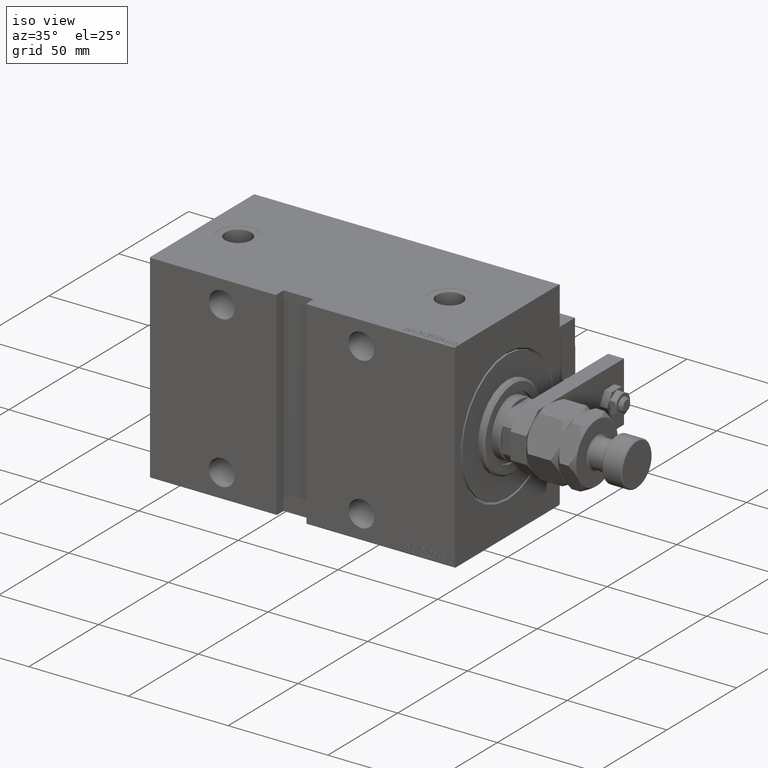
[diagram: clean part render]
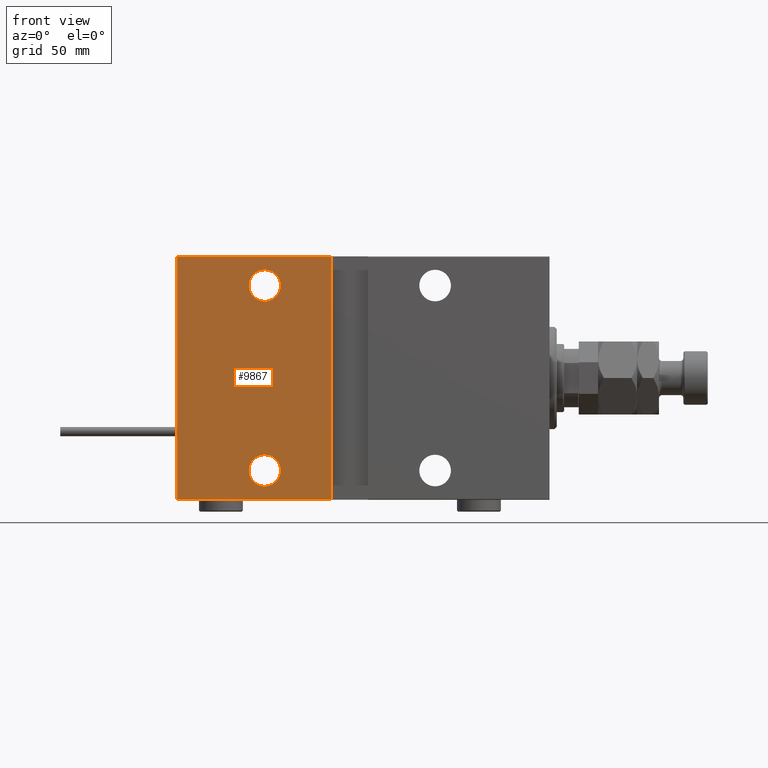
[diagram: tour spotlight — one face highlighted and labeled with its STEP entity id]
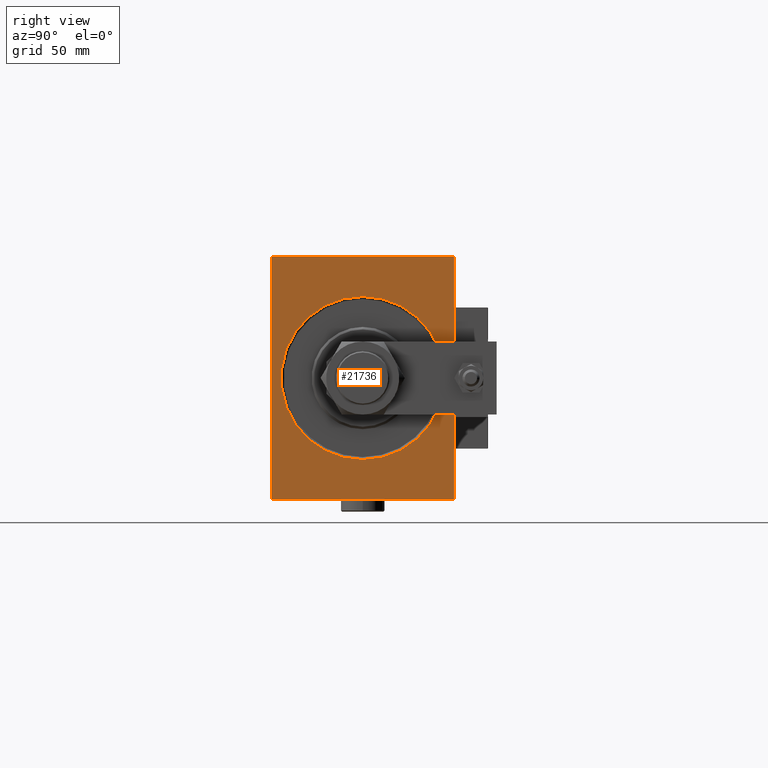
[diagram: tour spotlight — one face highlighted and labeled with its STEP entity id]
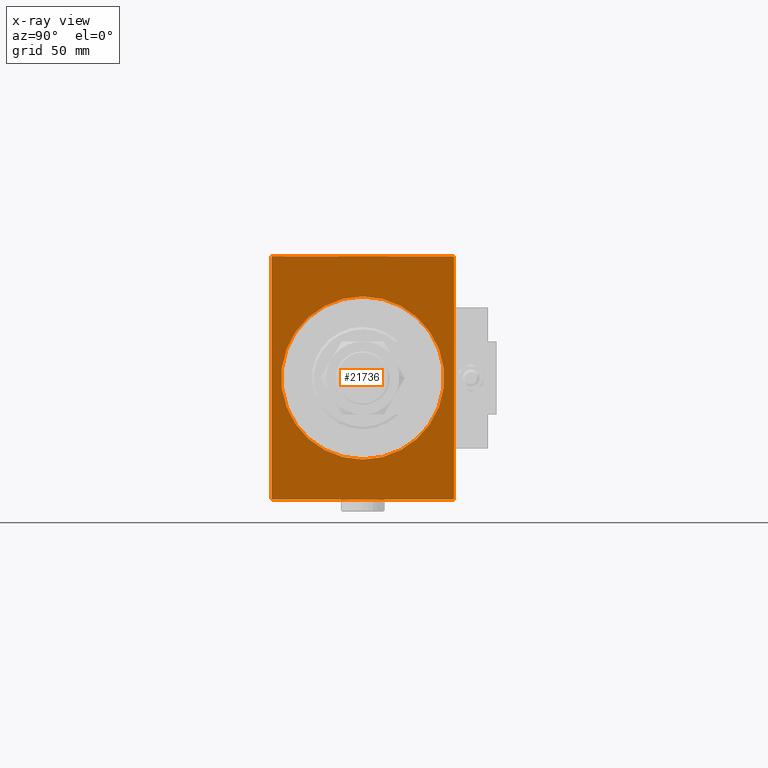
[diagram: x-ray of the same camera — body ghosted, this tour face saturated]
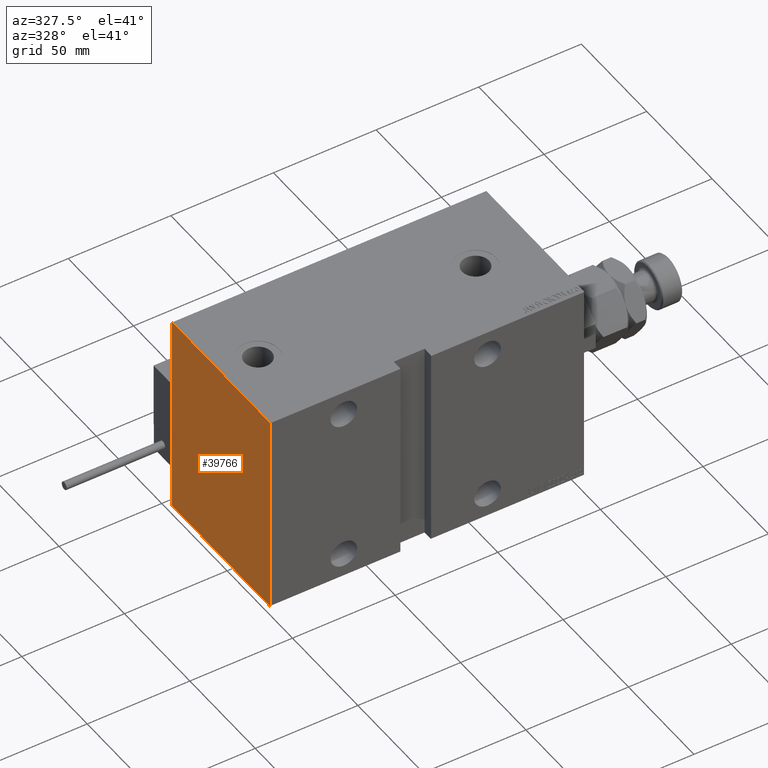
[diagram: tour spotlight — one face highlighted and labeled with its STEP entity id]
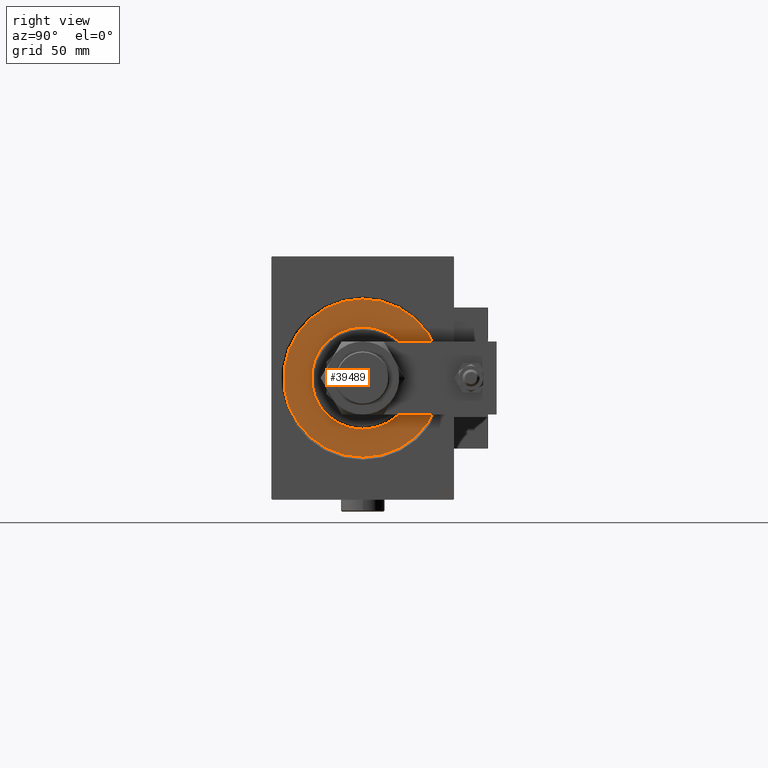
[diagram: tour spotlight — one face highlighted and labeled with its STEP entity id]
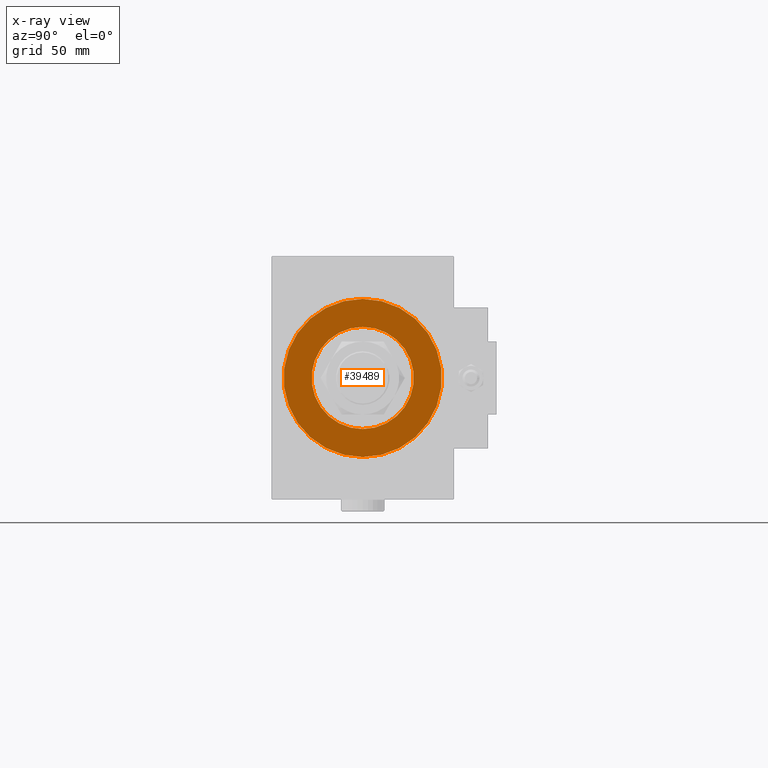
[diagram: x-ray of the same camera — body ghosted, this tour face saturated]
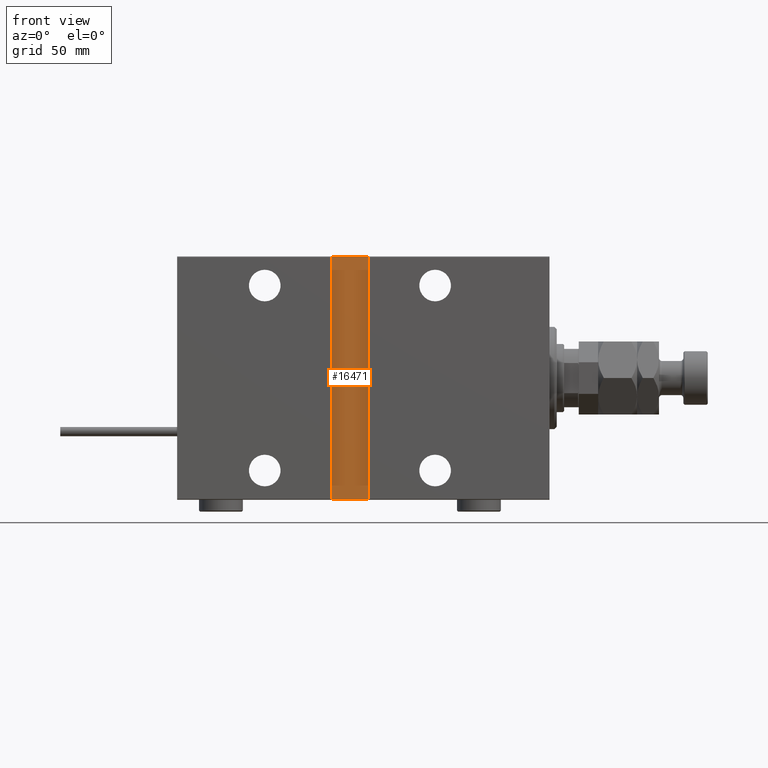
[diagram: tour spotlight — one face highlighted and labeled with its STEP entity id]
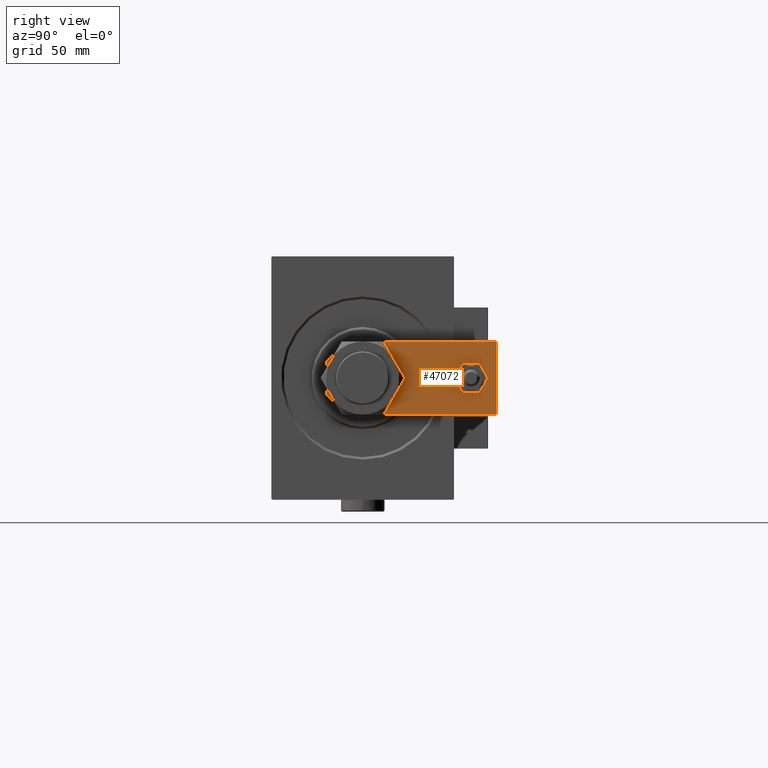
[diagram: tour spotlight — one face highlighted and labeled with its STEP entity id]
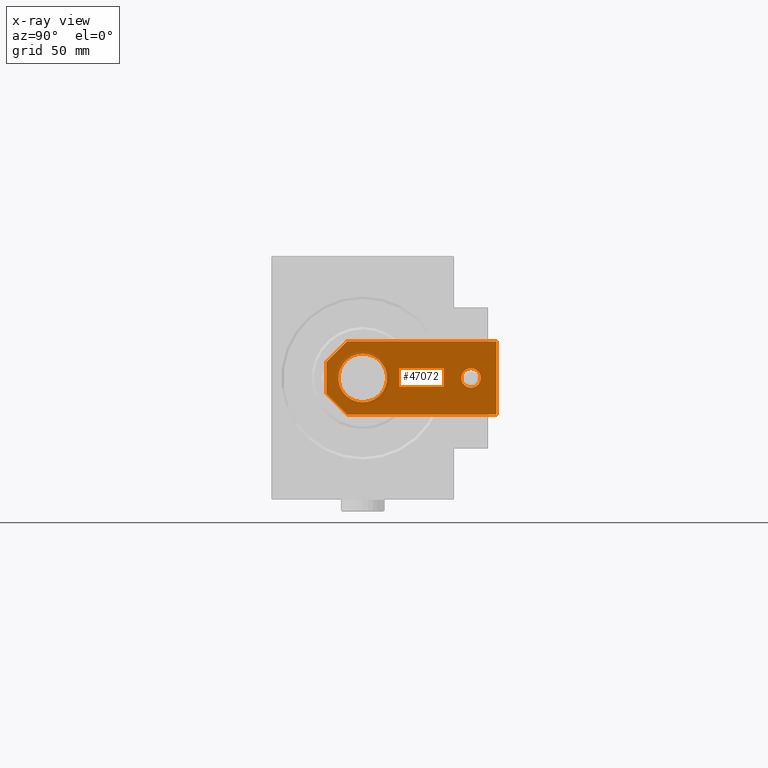
[diagram: x-ray of the same camera — body ghosted, this tour face saturated]
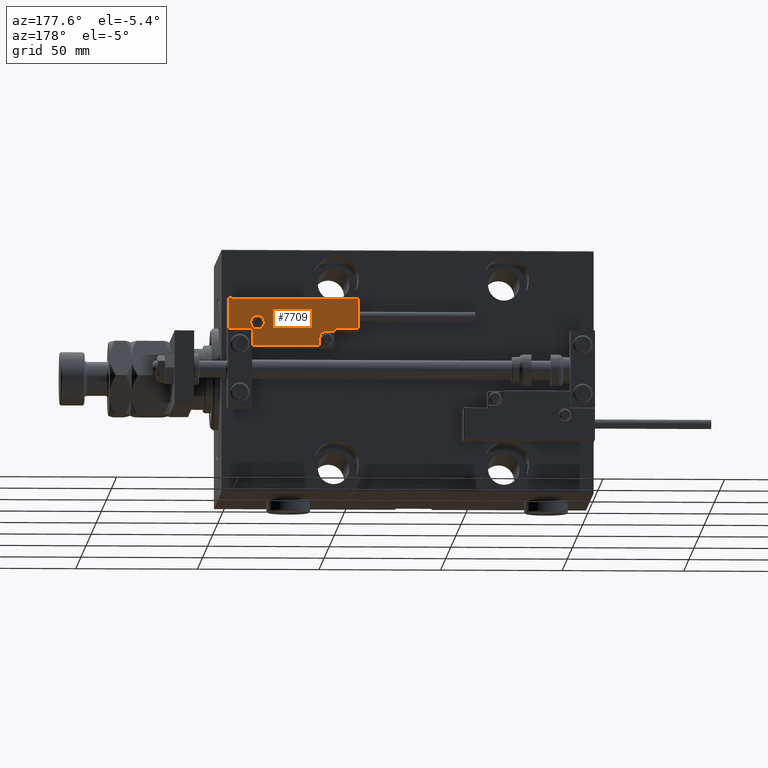
[diagram: tour spotlight — one face highlighted and labeled with its STEP entity id]
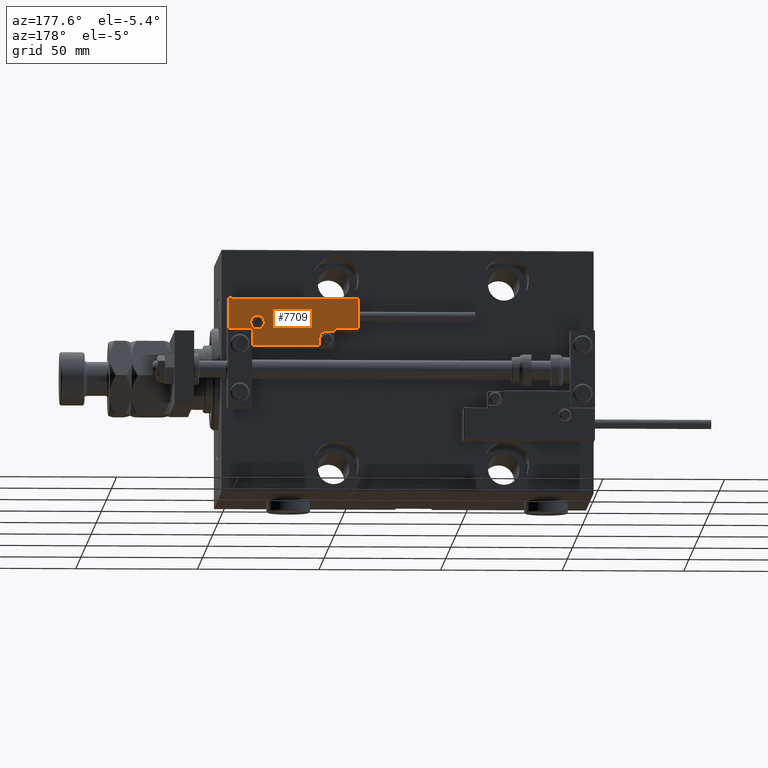
[diagram: tour spotlight — one face highlighted and labeled with its STEP entity id]
A machine part: a face-by-face anatomy tour. The part has 1401 B-rep faces; the first image is the clean iso view, then the 8 largest visible faces are spotlighted one at a time (largest first), each with its STEP entity span.

Face 1 — front view, entity #9867. In plain terms, the highlighted planar face has unit normal (-0, 1, -0).
Definition (entity closure, byte-faithful):
#248 = EDGE_CURVE ( 'NONE', #18387, #4590, #34618, .T. ) ;
#483 = EDGE_CURVE ( 'NONE', #19112, #26229, #46320, .T. ) ;
#2239 = CARTESIAN_POINT ( 'NONE',  ( 117.0000000000000000, 37.50000000000000711, -38.00000000000000000 ) ) ;
#2670 = DIRECTION ( 'NONE',  ( 1.000000000000000000, 0.000000000000000000, 0.000000000000000000 ) ) ;
#4590 = VERTEX_POINT ( 'NONE', #23427 ) ;
#4884 = CARTESIAN_POINT ( 'NONE',  ( 153.0000000000000000, 37.50000000000000711, -49.70000000000001705 ) ) ;
#4982 = EDGE_CURVE ( 'NONE', #33808, #26229, #15089, .T. ) ;
#6043 = DIRECTION ( 'NONE',  ( 0.000000000000000000, -1.000000000000000000, -1.387778780781445182E-16 ) ) ;
#7379 = AXIS2_PLACEMENT_3D ( 'NONE', #2239, #35174, #10537 ) ;
#7679 = DIRECTION ( 'NONE',  ( 0.000000000000000000, -1.000000000000000000, -1.387778780781445182E-16 ) ) ;
#7922 = VECTOR ( 'NONE', #2670, 1000.000000000000000 ) ;
#8030 = CARTESIAN_POINT ( 'NONE',  ( 153.0000000000000000, 37.50000000000000711, -50.00000000000000711 ) ) ;
#8160 = CIRCLE ( 'NONE', #11572, 6.499999999999999112 ) ;
#9603 = ORIENTED_EDGE ( 'NONE', *, *, #4982, .F. ) ;
#9867 = ADVANCED_FACE ( 'NONE', ( #21840, #51365, #29609 ), #30411, .F. ) ;
#10043 = ORIENTED_EDGE ( 'NONE', *, *, #248, .T. ) ;
#10537 = DIRECTION ( 'NONE',  ( 0.000000000000000000, 0.000000000000000000, -1.000000000000000000 ) ) ;
#11572 = AXIS2_PLACEMENT_3D ( 'NONE', #23478, #43604, #51673 ) ;
#12596 = EDGE_CURVE ( 'NONE', #19112, #45155, #41630, .T. ) ;
#12762 = ORIENTED_EDGE ( 'NONE', *, *, #29509, .T. ) ;
#13032 = ORIENTED_EDGE ( 'NONE', *, *, #483, .T. ) ;
#14264 = EDGE_LOOP ( 'NONE', ( #28526, #13032, #9603, #24773 ) ) ;
#14370 = CARTESIAN_POINT ( 'NONE',  ( 117.0000000000000000, 37.50000000000000711, -31.50000000000000000 ) ) ;
#14497 = CARTESIAN_POINT ( 'NONE',  ( 117.0000000000000142, 37.49999999999999289, 44.49999999999999289 ) ) ;
#15089 = LINE ( 'NONE', #31410, #47021 ) ;
#18387 = VERTEX_POINT ( 'NONE', #14370 ) ;
#19112 = VERTEX_POINT ( 'NONE', #4884 ) ;
#19277 = CARTESIAN_POINT ( 'NONE',  ( 153.0000000000000000, 37.49999999999999289, 49.70000000000000284 ) ) ;
#19327 = AXIS2_PLACEMENT_3D ( 'NONE', #20276, #7679, #33115 ) ;
#19560 = CARTESIAN_POINT ( 'NONE',  ( 117.0000000000000000, 37.50000000000000711, -38.00000000000000000 ) ) ;
#20276 = CARTESIAN_POINT ( 'NONE',  ( 117.0000000000000142, 37.49999999999999289, 37.99999999999999289 ) ) ;
#21840 = FACE_BOUND ( 'NONE', #24454, .T. ) ;
#22897 = CARTESIAN_POINT ( 'NONE',  ( 117.0000000000000142, 37.49999999999999289, 31.49999999999999289 ) ) ;
#23024 = LINE ( 'NONE', #19277, #7922 ) ;
#23389 = EDGE_CURVE ( 'NONE', #25434, #31495, #8160, .T. ) ;
#23427 = CARTESIAN_POINT ( 'NONE',  ( 117.0000000000000000, 37.50000000000000711, -44.50000000000000000 ) ) ;
#23478 = CARTESIAN_POINT ( 'NONE',  ( 117.0000000000000142, 37.49999999999999289, 37.99999999999999289 ) ) ;
#23625 = CIRCLE ( 'NONE', #7379, 6.499999999999999112 ) ;
#24454 = EDGE_LOOP ( 'NONE', ( #10043, #32001 ) ) ;
#24773 = ORIENTED_EDGE ( 'NONE', *, *, #45998, .T. ) ;
#24954 = CARTESIAN_POINT ( 'NONE',  ( 89.50000000000000000, 37.50000000000000711, -49.70000000000001705 ) ) ;
#25434 = VERTEX_POINT ( 'NONE', #14497 ) ;
#26229 = VERTEX_POINT ( 'NONE', #24954 ) ;
#28526 = ORIENTED_EDGE ( 'NONE', *, *, #12596, .F. ) ;
#29509 = EDGE_CURVE ( 'NONE', #31495, #25434, #38177, .T. ) ;
#29609 = FACE_OUTER_BOUND ( 'NONE', #14264, .T. ) ;
#30219 = DIRECTION ( 'NONE',  ( -1.000000000000000000, 0.000000000000000000, 0.000000000000000000 ) ) ;
#30411 = PLANE ( 'NONE',  #36157 ) ;
#31410 = CARTESIAN_POINT ( 'NONE',  ( 89.50000000000000000, 37.50000000000000711, -50.00000000000009237 ) ) ;
#31495 = VERTEX_POINT ( 'NONE', #22897 ) ;
#32001 = ORIENTED_EDGE ( 'NONE', *, *, #34592, .T. ) ;
#33115 = DIRECTION ( 'NONE',  ( 0.000000000000000000, 0.000000000000000000, -1.000000000000000000 ) ) ;
#33196 = DIRECTION ( 'NONE',  ( 0.000000000000000000, -1.387778780781445182E-16, 1.000000000000000000 ) ) ;
#33808 = VERTEX_POINT ( 'NONE', #52091 ) ;
#34592 = EDGE_CURVE ( 'NONE', #4590, #18387, #23625, .T. ) ;
#34618 = CIRCLE ( 'NONE', #37164, 6.499999999999999112 ) ;
#35174 = DIRECTION ( 'NONE',  ( 0.000000000000000000, -1.000000000000000000, -1.387778780781445182E-16 ) ) ;
#35883 = DIRECTION ( 'NONE',  ( 0.000000000000000000, -1.000000000000000000, -1.387778780781445182E-16 ) ) ;
#36157 = AXIS2_PLACEMENT_3D ( 'NONE', #42752, #6043, #46507 ) ;
#36673 = DIRECTION ( 'NONE',  ( 0.000000000000000000, 0.000000000000000000, -1.000000000000000000 ) ) ;
#37164 = AXIS2_PLACEMENT_3D ( 'NONE', #19560, #35883, #36673 ) ;
#38177 = CIRCLE ( 'NONE', #19327, 6.499999999999999112 ) ;
#38907 = VECTOR ( 'NONE', #30219, 1000.000000000000000 ) ;
#40081 = ORIENTED_EDGE ( 'NONE', *, *, #23389, .T. ) ;
#40610 = CARTESIAN_POINT ( 'NONE',  ( 153.0000000000000000, 37.49999999999999289, 49.70000000000000284 ) ) ;
#41630 = LINE ( 'NONE', #8030, #43159 ) ;
#42752 = CARTESIAN_POINT ( 'NONE',  ( 153.0000000000000000, 37.50000000000000711, -50.00000000000000711 ) ) ;
#43091 = EDGE_LOOP ( 'NONE', ( #40081, #12762 ) ) ;
#43159 = VECTOR ( 'NONE', #33196, 1000.000000000000000 ) ;
#43604 = DIRECTION ( 'NONE',  ( 0.000000000000000000, -1.000000000000000000, -1.387778780781445182E-16 ) ) ;
#45155 = VERTEX_POINT ( 'NONE', #40610 ) ;
#45998 = EDGE_CURVE ( 'NONE', #33808, #45155, #23024, .T. ) ;
#46320 = LINE ( 'NONE', #50626, #38907 ) ;
#46507 = DIRECTION ( 'NONE',  ( 0.000000000000000000, 1.387778780781445182E-16, -1.000000000000000000 ) ) ;
#47021 = VECTOR ( 'NONE', #48039, 1000.000000000000000 ) ;
#48039 = DIRECTION ( 'NONE',  ( 1.387778780781444196E-16, 1.387778780781444196E-16, -1.000000000000000000 ) ) ;
#50626 = CARTESIAN_POINT ( 'NONE',  ( 153.0000000000000000, 37.50000000000000711, -49.70000000000001705 ) ) ;
#51365 = FACE_BOUND ( 'NONE', #43091, .T. ) ;
#51673 = DIRECTION ( 'NONE',  ( 0.000000000000000000, 0.000000000000000000, -1.000000000000000000 ) ) ;
#52091 = CARTESIAN_POINT ( 'NONE',  ( 89.49999999999998579, 37.49999999999999289, 49.69999999999997442 ) ) ;

Face 2 — right view, entity #21736. An x-ray twin of the same camera follows (body ghosted, this face saturated) — the face is partly hidden behind the body. In plain terms, the highlighted planar face has unit normal (-1, 0, 0).
Definition (entity closure, byte-faithful):
#931 = AXIS2_PLACEMENT_3D ( 'NONE', #23116, #34643, #42962 ) ;
#1587 = VERTEX_POINT ( 'NONE', #43965 ) ;
#1717 = CARTESIAN_POINT ( 'NONE',  ( 0.000000000000000000, 37.20000000000004547, -50.00000000000000711 ) ) ;
#3975 = EDGE_LOOP ( 'NONE', ( #8108, #49578, #32792, #9693, #13779, #7066, #35428, #51733 ) ) ;
#3979 = CARTESIAN_POINT ( 'NONE',  ( 0.000000000000000000, 4.102566777143633774E-15, -33.50000000000000000 ) ) ;
#4292 = CARTESIAN_POINT ( 'NONE',  ( 0.000000000000000000, 37.19999999999996732, 50.00000000000001421 ) ) ;
#4353 = CARTESIAN_POINT ( 'NONE',  ( 0.000000000000000000, 37.50000000000000711, -49.70000000000001705 ) ) ;
#5083 = VECTOR ( 'NONE', #48864, 1000.000000000000000 ) ;
#7066 = ORIENTED_EDGE ( 'NONE', *, *, #38280, .T. ) ;
#7826 = CARTESIAN_POINT ( 'NONE',  ( 0.000000000000000000, 37.19999999999996732, 50.00000000000001421 ) ) ;
#8108 = ORIENTED_EDGE ( 'NONE', *, *, #20611, .F. ) ;
#8455 = VERTEX_POINT ( 'NONE', #1717 ) ;
#8925 = EDGE_CURVE ( 'NONE', #39301, #8455, #10485, .T. ) ;
#9105 = VERTEX_POINT ( 'NONE', #20628 ) ;
#9693 = ORIENTED_EDGE ( 'NONE', *, *, #14880, .T. ) ;
#9959 = EDGE_CURVE ( 'NONE', #18168, #33635, #50292, .T. ) ;
#10231 = VECTOR ( 'NONE', #41556, 999.9999999999998863 ) ;
#10485 = LINE ( 'NONE', #39153, #16264 ) ;
#10498 = CARTESIAN_POINT ( 'NONE',  ( 0.000000000000000000, -37.50000000000000000, 49.69999999999998153 ) ) ;
#13074 = VECTOR ( 'NONE', #42224, 1000.000000000000000 ) ;
#13560 = LINE ( 'NONE', #50829, #33068 ) ;
#13779 = ORIENTED_EDGE ( 'NONE', *, *, #8925, .F. ) ;
#14880 = EDGE_CURVE ( 'NONE', #18168, #8455, #40543, .T. ) ;
#14984 = EDGE_CURVE ( 'NONE', #31270, #15704, #43199, .T. ) ;
#15282 = CARTESIAN_POINT ( 'NONE',  ( 0.000000000000000000, 37.50000000000000711, -49.70000000000001705 ) ) ;
#15553 = DIRECTION ( 'NONE',  ( 0.000000000000000000, 1.000000000000000000, 9.251858538542970348E-17 ) ) ;
#15704 = VERTEX_POINT ( 'NONE', #49079 ) ;
#16264 = VECTOR ( 'NONE', #15553, 1000.000000000000000 ) ;
#16338 = CARTESIAN_POINT ( 'NONE',  ( 0.000000000000000000, 0.000000000000000000, 0.000000000000000000 ) ) ;
#17077 = CARTESIAN_POINT ( 'NONE',  ( 0.000000000000000000, 37.49999999999999289, 50.00000000000001421 ) ) ;
#18168 = VERTEX_POINT ( 'NONE', #15282 ) ;
#18175 = AXIS2_PLACEMENT_3D ( 'NONE', #16338, #20633, #19843 ) ;
#18199 = EDGE_CURVE ( 'NONE', #31270, #9105, #13560, .T. ) ;
#18354 = CARTESIAN_POINT ( 'NONE',  ( 0.000000000000000000, -37.20000000000003126, -50.00000000000001421 ) ) ;
#18794 = DIRECTION ( 'NONE',  ( -0.000000000000000000, 0.7071067811865556774, 0.7071067811865392461 ) ) ;
#19843 = DIRECTION ( 'NONE',  ( 0.000000000000000000, 0.000000000000000000, -1.000000000000000000 ) ) ;
#20214 = CARTESIAN_POINT ( 'NONE',  ( 0.000000000000000000, 37.49999999999999289, 49.70000000000000284 ) ) ;
#20340 = DIRECTION ( 'NONE',  ( 0.000000000000000000, 0.000000000000000000, -1.000000000000000000 ) ) ;
#20611 = EDGE_CURVE ( 'NONE', #25262, #15704, #40950, .T. ) ;
#20628 = CARTESIAN_POINT ( 'NONE',  ( 0.000000000000000000, -37.50000000000000000, -49.70000000000002416 ) ) ;
#20633 = DIRECTION ( 'NONE',  ( 1.000000000000000000, 0.000000000000000000, 0.000000000000000000 ) ) ;
#21736 = ADVANCED_FACE ( 'NONE', ( #45541, #32673 ), #45027, .F. ) ;
#22520 = AXIS2_PLACEMENT_3D ( 'NONE', #32939, #34744, #36158 ) ;
#23116 = CARTESIAN_POINT ( 'NONE',  ( 0.000000000000000000, 0.000000000000000000, 0.000000000000000000 ) ) ;
#23948 = EDGE_CURVE ( 'NONE', #25262, #33635, #35724, .T. ) ;
#25262 = VERTEX_POINT ( 'NONE', #7826 ) ;
#25665 = ORIENTED_EDGE ( 'NONE', *, *, #41448, .T. ) ;
#25742 = CIRCLE ( 'NONE', #931, 33.50000000000000000 ) ;
#25978 = CARTESIAN_POINT ( 'NONE',  ( 0.000000000000000000, -37.20000000000003126, -50.00000000000001421 ) ) ;
#29552 = ORIENTED_EDGE ( 'NONE', *, *, #45066, .T. ) ;
#31270 = VERTEX_POINT ( 'NONE', #45753 ) ;
#32673 = FACE_OUTER_BOUND ( 'NONE', #3975, .T. ) ;
#32792 = ORIENTED_EDGE ( 'NONE', *, *, #9959, .F. ) ;
#32939 = CARTESIAN_POINT ( 'NONE',  ( 0.000000000000000000, 0.000000000000000000, 0.000000000000000000 ) ) ;
#33068 = VECTOR ( 'NONE', #20340, 1000.000000000000000 ) ;
#33635 = VERTEX_POINT ( 'NONE', #20214 ) ;
#34643 = DIRECTION ( 'NONE',  ( 1.000000000000000000, 0.000000000000000000, 0.000000000000000000 ) ) ;
#34706 = VECTOR ( 'NONE', #44057, 1000.000000000000114 ) ;
#34744 = DIRECTION ( 'NONE',  ( 1.000000000000000000, 0.000000000000000000, 0.000000000000000000 ) ) ;
#35428 = ORIENTED_EDGE ( 'NONE', *, *, #18199, .F. ) ;
#35724 = LINE ( 'NONE', #4292, #34706 ) ;
#36158 = DIRECTION ( 'NONE',  ( 0.000000000000000000, 0.000000000000000000, -1.000000000000000000 ) ) ;
#38280 = EDGE_CURVE ( 'NONE', #39301, #9105, #49881, .T. ) ;
#38740 = VECTOR ( 'NONE', #49806, 1000.000000000000000 ) ;
#39153 = CARTESIAN_POINT ( 'NONE',  ( 0.000000000000000000, -37.50000000000000000, -50.00000000000001421 ) ) ;
#39301 = VERTEX_POINT ( 'NONE', #18354 ) ;
#39593 = VERTEX_POINT ( 'NONE', #3979 ) ;
#40543 = LINE ( 'NONE', #4353, #5083 ) ;
#40950 = LINE ( 'NONE', #17077, #38740 ) ;
#41448 = EDGE_CURVE ( 'NONE', #39593, #1587, #25742, .T. ) ;
#41556 = DIRECTION ( 'NONE',  ( -0.000000000000000000, -0.7071067811865149322, 0.7071067811865802133 ) ) ;
#42127 = CIRCLE ( 'NONE', #18175, 33.50000000000000000 ) ;
#42224 = DIRECTION ( 'NONE',  ( 0.000000000000000000, -1.387778780781445182E-16, 1.000000000000000000 ) ) ;
#42962 = DIRECTION ( 'NONE',  ( 0.000000000000000000, 0.000000000000000000, -1.000000000000000000 ) ) ;
#43199 = LINE ( 'NONE', #10498, #50492 ) ;
#43965 = CARTESIAN_POINT ( 'NONE',  ( 0.000000000000000000, 0.000000000000000000, 33.50000000000000000 ) ) ;
#44057 = DIRECTION ( 'NONE',  ( -0.000000000000000000, 0.7071067811865556774, -0.7071067811865393571 ) ) ;
#45027 = PLANE ( 'NONE',  #22520 ) ;
#45066 = EDGE_CURVE ( 'NONE', #1587, #39593, #42127, .T. ) ;
#45541 = FACE_BOUND ( 'NONE', #50531, .T. ) ;
#45753 = CARTESIAN_POINT ( 'NONE',  ( 0.000000000000000000, -37.50000000000000000, 49.69999999999998153 ) ) ;
#46241 = CARTESIAN_POINT ( 'NONE',  ( 0.000000000000000000, 37.50000000000000711, -50.00000000000000711 ) ) ;
#48864 = DIRECTION ( 'NONE',  ( 0.000000000000000000, -0.7071067811865066055, -0.7071067811865884289 ) ) ;
#49079 = CARTESIAN_POINT ( 'NONE',  ( 0.000000000000000000, -37.19999999999996732, 50.00000000000000000 ) ) ;
#49578 = ORIENTED_EDGE ( 'NONE', *, *, #23948, .T. ) ;
#49806 = DIRECTION ( 'NONE',  ( 0.000000000000000000, -1.000000000000000000, -1.850371707708594563E-16 ) ) ;
#49881 = LINE ( 'NONE', #25978, #10231 ) ;
#50292 = LINE ( 'NONE', #46241, #13074 ) ;
#50492 = VECTOR ( 'NONE', #18794, 1000.000000000000114 ) ;
#50531 = EDGE_LOOP ( 'NONE', ( #29552, #25665 ) ) ;
#50829 = CARTESIAN_POINT ( 'NONE',  ( 0.000000000000000000, -37.50000000000000000, 50.00000000000000000 ) ) ;
#51733 = ORIENTED_EDGE ( 'NONE', *, *, #14984, .T. ) ;

Face 3 — auxiliary view, entity #39766. In plain terms, the highlighted planar face has unit normal (-1, 0, 0).
Definition (entity closure, byte-faithful):
#482 = DIRECTION ( 'NONE',  ( 0.000000000000000000, 0.000000000000000000, -1.000000000000000000 ) ) ;
#1167 = CARTESIAN_POINT ( 'NONE',  ( 153.0000000000000000, 37.49999999999999289, 50.00000000000001421 ) ) ;
#1484 = DIRECTION ( 'NONE',  ( 0.000000000000000000, -0.7071067811865556774, -0.7071067811865392461 ) ) ;
#2269 = CARTESIAN_POINT ( 'NONE',  ( 153.0000000000000000, 37.20000000000004547, -50.00000000000000711 ) ) ;
#4192 = ORIENTED_EDGE ( 'NONE', *, *, #4401, .T. ) ;
#4401 = EDGE_CURVE ( 'NONE', #32647, #8395, #37648, .T. ) ;
#4884 = CARTESIAN_POINT ( 'NONE',  ( 153.0000000000000000, 37.50000000000000711, -49.70000000000001705 ) ) ;
#6655 = VECTOR ( 'NONE', #36713, 999.9999999999998863 ) ;
#8030 = CARTESIAN_POINT ( 'NONE',  ( 153.0000000000000000, 37.50000000000000711, -50.00000000000000711 ) ) ;
#8331 = CARTESIAN_POINT ( 'NONE',  ( 153.0000000000000000, -43.60000000000174225, -43.59999999999771347 ) ) ;
#8395 = VERTEX_POINT ( 'NONE', #37887 ) ;
#12348 = CARTESIAN_POINT ( 'NONE',  ( 153.0000000000000000, 43.60000000000217568, -43.59999999999713083 ) ) ;
#12596 = EDGE_CURVE ( 'NONE', #19112, #45155, #41630, .T. ) ;
#12607 = CARTESIAN_POINT ( 'NONE',  ( 153.0000000000000000, -37.50000000000000000, -49.70000000000002416 ) ) ;
#13142 = DIRECTION ( 'NONE',  ( -0.000000000000000000, 0.7071067811865066055, 0.7071067811865884289 ) ) ;
#14553 = VERTEX_POINT ( 'NONE', #2269 ) ;
#14644 = VECTOR ( 'NONE', #50871, 1000.000000000000000 ) ;
#16089 = LINE ( 'NONE', #8331, #6655 ) ;
#16202 = EDGE_CURVE ( 'NONE', #8395, #19487, #39311, .T. ) ;
#16257 = AXIS2_PLACEMENT_3D ( 'NONE', #50349, #25388, #482 ) ;
#16534 = ORIENTED_EDGE ( 'NONE', *, *, #24961, .T. ) ;
#16939 = EDGE_CURVE ( 'NONE', #26187, #14553, #26317, .T. ) ;
#18809 = CARTESIAN_POINT ( 'NONE',  ( 153.0000000000000000, -37.19999999999996732, 50.00000000000000000 ) ) ;
#18842 = CARTESIAN_POINT ( 'NONE',  ( 153.0000000000000000, -37.20000000000003126, -50.00000000000001421 ) ) ;
#19112 = VERTEX_POINT ( 'NONE', #4884 ) ;
#19285 = DIRECTION ( 'NONE',  ( 0.000000000000000000, 1.000000000000000000, 9.251858538542970348E-17 ) ) ;
#19487 = VERTEX_POINT ( 'NONE', #12607 ) ;
#20022 = ORIENTED_EDGE ( 'NONE', *, *, #27603, .T. ) ;
#20211 = EDGE_CURVE ( 'NONE', #14553, #19112, #32693, .T. ) ;
#20445 = VECTOR ( 'NONE', #1484, 1000.000000000000114 ) ;
#21616 = ORIENTED_EDGE ( 'NONE', *, *, #16939, .T. ) ;
#22629 = DIRECTION ( 'NONE',  ( -0.000000000000000000, -0.7071067811865556774, 0.7071067811865393571 ) ) ;
#24567 = VECTOR ( 'NONE', #22629, 1000.000000000000114 ) ;
#24603 = ORIENTED_EDGE ( 'NONE', *, *, #12596, .T. ) ;
#24961 = EDGE_CURVE ( 'NONE', #37210, #32647, #45933, .T. ) ;
#25388 = DIRECTION ( 'NONE',  ( 1.000000000000000000, 0.000000000000000000, 0.000000000000000000 ) ) ;
#26187 = VERTEX_POINT ( 'NONE', #18842 ) ;
#26317 = LINE ( 'NONE', #34355, #32582 ) ;
#26906 = CARTESIAN_POINT ( 'NONE',  ( 153.0000000000000000, 43.59999999999956088, 43.60000000000056986 ) ) ;
#27391 = ORIENTED_EDGE ( 'NONE', *, *, #16202, .T. ) ;
#27603 = EDGE_CURVE ( 'NONE', #45155, #37210, #39243, .T. ) ;
#27860 = VECTOR ( 'NONE', #13142, 1000.000000000000000 ) ;
#28048 = EDGE_CURVE ( 'NONE', #19487, #26187, #16089, .T. ) ;
#30108 = ORIENTED_EDGE ( 'NONE', *, *, #28048, .T. ) ;
#32582 = VECTOR ( 'NONE', #19285, 1000.000000000000000 ) ;
#32609 = ORIENTED_EDGE ( 'NONE', *, *, #20211, .T. ) ;
#32647 = VERTEX_POINT ( 'NONE', #18809 ) ;
#32693 = LINE ( 'NONE', #12348, #27860 ) ;
#33196 = DIRECTION ( 'NONE',  ( 0.000000000000000000, -1.387778780781445182E-16, 1.000000000000000000 ) ) ;
#33368 = CARTESIAN_POINT ( 'NONE',  ( 153.0000000000000000, -43.59999999999956088, 43.60000000000057696 ) ) ;
#33691 = PLANE ( 'NONE',  #16257 ) ;
#33965 = FACE_OUTER_BOUND ( 'NONE', #40606, .T. ) ;
#34355 = CARTESIAN_POINT ( 'NONE',  ( 153.0000000000000000, -37.50000000000000000, -50.00000000000001421 ) ) ;
#34757 = CARTESIAN_POINT ( 'NONE',  ( 153.0000000000000000, -37.50000000000000000, 50.00000000000000000 ) ) ;
#36713 = DIRECTION ( 'NONE',  ( -0.000000000000000000, 0.7071067811865149322, -0.7071067811865802133 ) ) ;
#37210 = VERTEX_POINT ( 'NONE', #49004 ) ;
#37648 = LINE ( 'NONE', #33368, #20445 ) ;
#37887 = CARTESIAN_POINT ( 'NONE',  ( 153.0000000000000000, -37.50000000000000000, 49.69999999999998153 ) ) ;
#39243 = LINE ( 'NONE', #26906, #24567 ) ;
#39311 = LINE ( 'NONE', #34757, #14644 ) ;
#39766 = ADVANCED_FACE ( 'NONE', ( #33965 ), #33691, .T. ) ;
#40606 = EDGE_LOOP ( 'NONE', ( #21616, #32609, #24603, #20022, #16534, #4192, #27391, #30108 ) ) ;
#40610 = CARTESIAN_POINT ( 'NONE',  ( 153.0000000000000000, 37.49999999999999289, 49.70000000000000284 ) ) ;
#41630 = LINE ( 'NONE', #8030, #43159 ) ;
#42168 = DIRECTION ( 'NONE',  ( 0.000000000000000000, -1.000000000000000000, -1.850371707708594563E-16 ) ) ;
#43159 = VECTOR ( 'NONE', #33196, 1000.000000000000000 ) ;
#45155 = VERTEX_POINT ( 'NONE', #40610 ) ;
#45759 = VECTOR ( 'NONE', #42168, 1000.000000000000000 ) ;
#45933 = LINE ( 'NONE', #1167, #45759 ) ;
#49004 = CARTESIAN_POINT ( 'NONE',  ( 153.0000000000000000, 37.19999999999996732, 50.00000000000001421 ) ) ;
#50349 = CARTESIAN_POINT ( 'NONE',  ( 153.0000000000000000, 0.000000000000000000, 0.000000000000000000 ) ) ;
#50871 = DIRECTION ( 'NONE',  ( 0.000000000000000000, 0.000000000000000000, -1.000000000000000000 ) ) ;

Face 4 — right view, entity #39489. An x-ray twin of the same camera follows (body ghosted, this face saturated) — the face is partly hidden behind the body. In plain terms, the highlighted planar face has unit normal (1, 0, 0).
Definition (entity closure, byte-faithful):
#217 = VERTEX_POINT ( 'NONE', #20348 ) ;
#395 = CARTESIAN_POINT ( 'NONE',  ( 0.000000000000000000, 0.000000000000000000, 0.000000000000000000 ) ) ;
#660 = DIRECTION ( 'NONE',  ( 1.000000000000000000, -0.000000000000000000, 0.000000000000000000 ) ) ;
#3316 = DIRECTION ( 'NONE',  ( 0.000000000000000000, 0.000000000000000000, -1.000000000000000000 ) ) ;
#5011 = CIRCLE ( 'NONE', #49532, 32.50000000000000000 ) ;
#6699 = FACE_BOUND ( 'NONE', #18825, .T. ) ;
#8467 = AXIS2_PLACEMENT_3D ( 'NONE', #9568, #26708, #35019 ) ;
#9568 = CARTESIAN_POINT ( 'NONE',  ( 0.000000000000000000, 0.000000000000000000, 0.000000000000000000 ) ) ;
#12198 = DIRECTION ( 'NONE',  ( 0.000000000000000000, 0.000000000000000000, -1.000000000000000000 ) ) ;
#14873 = CARTESIAN_POINT ( 'NONE',  ( 0.000000000000000000, 0.000000000000000000, 0.000000000000000000 ) ) ;
#17597 = ORIENTED_EDGE ( 'NONE', *, *, #33275, .T. ) ;
#17851 = ORIENTED_EDGE ( 'NONE', *, *, #36787, .T. ) ;
#18825 = EDGE_LOOP ( 'NONE', ( #25761, #32112 ) ) ;
#20348 = CARTESIAN_POINT ( 'NONE',  ( 0.000000000000000000, 0.000000000000000000, -32.50000000000000000 ) ) ;
#21406 = VERTEX_POINT ( 'NONE', #32734 ) ;
#22518 = CIRCLE ( 'NONE', #27075, 32.50000000000000000 ) ;
#22772 = PLANE ( 'NONE',  #47974 ) ;
#24241 = VERTEX_POINT ( 'NONE', #44439 ) ;
#25689 = VERTEX_POINT ( 'NONE', #49571 ) ;
#25761 = ORIENTED_EDGE ( 'NONE', *, *, #47117, .F. ) ;
#26259 = CARTESIAN_POINT ( 'NONE',  ( 0.000000000000000000, 0.000000000000000000, 0.000000000000000000 ) ) ;
#26445 = CIRCLE ( 'NONE', #8467, 21.00000000000000000 ) ;
#26708 = DIRECTION ( 'NONE',  ( 1.000000000000000000, -0.000000000000000000, 0.000000000000000000 ) ) ;
#27075 = AXIS2_PLACEMENT_3D ( 'NONE', #26259, #50162, #38322 ) ;
#27568 = DIRECTION ( 'NONE',  ( 0.000000000000000000, 0.000000000000000000, -1.000000000000000000 ) ) ;
#29367 = AXIS2_PLACEMENT_3D ( 'NONE', #395, #660, #12198 ) ;
#30211 = CIRCLE ( 'NONE', #29367, 21.00000000000000000 ) ;
#32112 = ORIENTED_EDGE ( 'NONE', *, *, #37359, .F. ) ;
#32734 = CARTESIAN_POINT ( 'NONE',  ( 0.000000000000000000, 0.000000000000000000, 21.00000000000000000 ) ) ;
#33275 = EDGE_CURVE ( 'NONE', #25689, #217, #22518, .T. ) ;
#34824 = FACE_OUTER_BOUND ( 'NONE', #42198, .T. ) ;
#35019 = DIRECTION ( 'NONE',  ( 0.000000000000000000, 0.000000000000000000, -1.000000000000000000 ) ) ;
#35728 = DIRECTION ( 'NONE',  ( 1.000000000000000000, 0.000000000000000000, 0.000000000000000000 ) ) ;
#36787 = EDGE_CURVE ( 'NONE', #217, #25689, #5011, .T. ) ;
#37359 = EDGE_CURVE ( 'NONE', #24241, #21406, #26445, .T. ) ;
#38322 = DIRECTION ( 'NONE',  ( 0.000000000000000000, 0.000000000000000000, -1.000000000000000000 ) ) ;
#39489 = ADVANCED_FACE ( 'NONE', ( #34824, #6699 ), #22772, .T. ) ;
#42198 = EDGE_LOOP ( 'NONE', ( #17851, #17597 ) ) ;
#44439 = CARTESIAN_POINT ( 'NONE',  ( 0.000000000000000000, 2.571758278209441661E-15, -21.00000000000000000 ) ) ;
#47117 = EDGE_CURVE ( 'NONE', #21406, #24241, #30211, .T. ) ;
#47180 = DIRECTION ( 'NONE',  ( 1.000000000000000000, 0.000000000000000000, 0.000000000000000000 ) ) ;
#47974 = AXIS2_PLACEMENT_3D ( 'NONE', #51491, #47180, #27568 ) ;
#49532 = AXIS2_PLACEMENT_3D ( 'NONE', #14873, #35728, #3316 ) ;
#49571 = CARTESIAN_POINT ( 'NONE',  ( 0.000000000000000000, 3.980102097228898626E-15, 32.50000000000000000 ) ) ;
#50162 = DIRECTION ( 'NONE',  ( 1.000000000000000000, 0.000000000000000000, 0.000000000000000000 ) ) ;
#51491 = CARTESIAN_POINT ( 'NONE',  ( 0.000000000000000000, 0.000000000000000000, 0.000000000000000000 ) ) ;

Face 5 — front view, entity #16471. In plain terms, the highlighted planar face has unit normal (-0, 1, -0).
Definition (entity closure, byte-faithful):
#684 = CARTESIAN_POINT ( 'NONE',  ( 89.50000000000000000, 32.50000000000000711, -50.00000000000009237 ) ) ;
#2290 = CARTESIAN_POINT ( 'NONE',  ( 74.49999999999998579, 32.50000000000000711, -50.00000000000009237 ) ) ;
#4419 = DIRECTION ( 'NONE',  ( 0.000000000000000000, -1.387778780781444196E-16, 1.000000000000000000 ) ) ;
#6549 = VECTOR ( 'NONE', #41830, 1000.000000000000000 ) ;
#12616 = CARTESIAN_POINT ( 'NONE',  ( 89.50000000000000000, 32.50000000000000711, -50.00000000000009237 ) ) ;
#12668 = VERTEX_POINT ( 'NONE', #46327 ) ;
#13593 = CARTESIAN_POINT ( 'NONE',  ( 89.50000000000000000, 32.50000000000000711, -50.00000000000000711 ) ) ;
#14520 = EDGE_LOOP ( 'NONE', ( #35744, #16840, #40839, #22421 ) ) ;
#16471 = ADVANCED_FACE ( 'NONE', ( #37916 ), #29601, .F. ) ;
#16840 = ORIENTED_EDGE ( 'NONE', *, *, #33991, .T. ) ;
#17556 = LINE ( 'NONE', #684, #46191 ) ;
#18520 = VERTEX_POINT ( 'NONE', #33056 ) ;
#20906 = DIRECTION ( 'NONE',  ( -1.000000000000000000, 0.000000000000000000, 0.000000000000000000 ) ) ;
#22421 = ORIENTED_EDGE ( 'NONE', *, *, #28026, .T. ) ;
#23584 = EDGE_CURVE ( 'NONE', #39162, #12668, #24779, .T. ) ;
#24779 = LINE ( 'NONE', #41138, #31268 ) ;
#25208 = LINE ( 'NONE', #25468, #6549 ) ;
#25468 = CARTESIAN_POINT ( 'NONE',  ( 89.49999999999998579, 32.49999999999999289, 50.00000000000001421 ) ) ;
#28026 = EDGE_CURVE ( 'NONE', #50868, #39162, #40223, .T. ) ;
#29601 = PLANE ( 'NONE',  #38554 ) ;
#31268 = VECTOR ( 'NONE', #4419, 1000.000000000000000 ) ;
#32286 = VECTOR ( 'NONE', #20906, 1000.000000000000000 ) ;
#33056 = CARTESIAN_POINT ( 'NONE',  ( 89.49999999999998579, 32.49999999999999289, 50.00000000000001421 ) ) ;
#33991 = EDGE_CURVE ( 'NONE', #12668, #18520, #25208, .T. ) ;
#34154 = DIRECTION ( 'NONE',  ( 0.000000000000000000, 1.387778780781444196E-16, -1.000000000000000000 ) ) ;
#35744 = ORIENTED_EDGE ( 'NONE', *, *, #23584, .T. ) ;
#37916 = FACE_OUTER_BOUND ( 'NONE', #14520, .T. ) ;
#38554 = AXIS2_PLACEMENT_3D ( 'NONE', #50284, #49481, #34154 ) ;
#39112 = EDGE_CURVE ( 'NONE', #18520, #50868, #17556, .T. ) ;
#39162 = VERTEX_POINT ( 'NONE', #2290 ) ;
#40223 = LINE ( 'NONE', #12616, #32286 ) ;
#40839 = ORIENTED_EDGE ( 'NONE', *, *, #39112, .T. ) ;
#41138 = CARTESIAN_POINT ( 'NONE',  ( 74.49999999999998579, 32.50000000000000711, -50.00000000000009237 ) ) ;
#41830 = DIRECTION ( 'NONE',  ( 1.000000000000000000, -0.000000000000000000, -0.000000000000000000 ) ) ;
#45445 = DIRECTION ( 'NONE',  ( 1.387778780781444196E-16, 1.387778780781444196E-16, -1.000000000000000000 ) ) ;
#46191 = VECTOR ( 'NONE', #45445, 1000.000000000000000 ) ;
#46327 = CARTESIAN_POINT ( 'NONE',  ( 74.49999999999998579, 32.49999999999999289, 50.00000000000001421 ) ) ;
#49481 = DIRECTION ( 'NONE',  ( 0.000000000000000000, -1.000000000000000000, -1.387778780781444196E-16 ) ) ;
#50284 = CARTESIAN_POINT ( 'NONE',  ( 0.000000000000000000, 32.50000000000000000, 4.573361891211577033E-15 ) ) ;
#50868 = VERTEX_POINT ( 'NONE', #13593 ) ;

Face 6 — right view, entity #47072. An x-ray twin of the same camera follows (body ghosted, this face saturated) — the face is partly hidden behind the body. In plain terms, the highlighted planar face has unit normal (1, 0, -0).
Definition (entity closure, byte-faithful):
#1543 = DIRECTION ( 'NONE',  ( 1.000000000000000000, 0.000000000000000000, 0.000000000000000000 ) ) ;
#1684 = EDGE_CURVE ( 'NONE', #24671, #2858, #3477, .T. ) ;
#1825 = EDGE_CURVE ( 'NONE', #41080, #18264, #19259, .T. ) ;
#2858 = VERTEX_POINT ( 'NONE', #14123 ) ;
#3284 = CARTESIAN_POINT ( 'NONE',  ( 4.000000000000000888, 59.50000000000001421, 8.000000000000000000 ) ) ;
#3477 = LINE ( 'NONE', #47736, #44925 ) ;
#3581 = DIRECTION ( 'NONE',  ( 0.000000000000000000, 0.000000000000000000, 1.000000000000000000 ) ) ;
#3642 = CARTESIAN_POINT ( 'NONE',  ( -15.00000000000000355, 0.000000000000000000, 8.000000000000000000 ) ) ;
#7448 = DIRECTION ( 'NONE',  ( 1.000000000000000000, 0.000000000000000000, 0.000000000000000000 ) ) ;
#7871 = CARTESIAN_POINT ( 'NONE',  ( -9.629649721936179265E-32, 15.00000000000001066, 8.000000000000000000 ) ) ;
#8004 = AXIS2_PLACEMENT_3D ( 'NONE', #38997, #10601, #43299 ) ;
#8991 = AXIS2_PLACEMENT_3D ( 'NONE', #25934, #39343, #7448 ) ;
#9848 = CARTESIAN_POINT ( 'NONE',  ( 0.000000000000000000, 0.000000000000000000, 8.000000000000000000 ) ) ;
#10601 = DIRECTION ( 'NONE',  ( 0.000000000000000000, 0.000000000000000000, 1.000000000000000000 ) ) ;
#11182 = LINE ( 'NONE', #3642, #12758 ) ;
#11482 = DIRECTION ( 'NONE',  ( -7.434529182757744162E-17, -1.000000000000000000, 0.000000000000000000 ) ) ;
#12758 = VECTOR ( 'NONE', #32301, 1000.000000000000000 ) ;
#12929 = ORIENTED_EDGE ( 'NONE', *, *, #26720, .T. ) ;
#13076 = DIRECTION ( 'NONE',  ( 1.000000000000000000, 0.000000000000000000, 0.000000000000000000 ) ) ;
#13977 = AXIS2_PLACEMENT_3D ( 'NONE', #37981, #38255, #1543 ) ;
#14069 = ORIENTED_EDGE ( 'NONE', *, *, #47073, .F. ) ;
#14123 = CARTESIAN_POINT ( 'NONE',  ( 15.00000000000000000, 70.00000000000000000, 8.000000000000000000 ) ) ;
#14958 = CARTESIAN_POINT ( 'NONE',  ( -6.499999999999993783, 0.000000000000000000, 8.000000000000000000 ) ) ;
#15088 = VECTOR ( 'NONE', #49693, 1000.000000000000000 ) ;
#15395 = DIRECTION ( 'NONE',  ( 1.000000000000000000, 0.000000000000000000, 0.000000000000000000 ) ) ;
#15815 = EDGE_CURVE ( 'NONE', #22380, #17184, #33748, .T. ) ;
#17084 = VECTOR ( 'NONE', #11482, 1000.000000000000000 ) ;
#17184 = VERTEX_POINT ( 'NONE', #14958 ) ;
#17290 = VECTOR ( 'NONE', #48015, 1000.000000000000114 ) ;
#17652 = EDGE_CURVE ( 'NONE', #2858, #20732, #33309, .T. ) ;
#18264 = VERTEX_POINT ( 'NONE', #28626 ) ;
#19259 = CIRCLE ( 'NONE', #8991, 10.00000000000000178 ) ;
#20140 = VERTEX_POINT ( 'NONE', #35402 ) ;
#20256 = ORIENTED_EDGE ( 'NONE', *, *, #15815, .T. ) ;
#20732 = VERTEX_POINT ( 'NONE', #47908 ) ;
#20808 = AXIS2_PLACEMENT_3D ( 'NONE', #9848, #42554, #13076 ) ;
#21210 = CARTESIAN_POINT ( 'NONE',  ( -15.00000000000000355, 8.500000000000028422, 8.000000000000000000 ) ) ;
#21355 = FACE_BOUND ( 'NONE', #27040, .T. ) ;
#21903 = FACE_OUTER_BOUND ( 'NONE', #26074, .T. ) ;
#22380 = VERTEX_POINT ( 'NONE', #21210 ) ;
#24671 = VERTEX_POINT ( 'NONE', #45731 ) ;
#25526 = CARTESIAN_POINT ( 'NONE',  ( 15.00000000000000000, 70.00000000000000000, 8.000000000000000000 ) ) ;
#25928 = AXIS2_PLACEMENT_3D ( 'NONE', #7871, #3581, #15395 ) ;
#25934 = CARTESIAN_POINT ( 'NONE',  ( -9.629649721936179265E-32, 15.00000000000001066, 8.000000000000000000 ) ) ;
#26074 = EDGE_LOOP ( 'NONE', ( #12929, #20256, #32601, #37179, #43390, #46256 ) ) ;
#26188 = PLANE ( 'NONE',  #20808 ) ;
#26720 = EDGE_CURVE ( 'NONE', #20732, #22380, #51991, .T. ) ;
#26818 = CIRCLE ( 'NONE', #25928, 10.00000000000000178 ) ;
#27040 = EDGE_LOOP ( 'NONE', ( #29535, #14069 ) ) ;
#28626 = CARTESIAN_POINT ( 'NONE',  ( 10.00000000000000178, 15.00000000000001243, 8.000000000000000000 ) ) ;
#29535 = ORIENTED_EDGE ( 'NONE', *, *, #52998, .F. ) ;
#31681 = CARTESIAN_POINT ( 'NONE',  ( -4.000000000000000888, 59.50000000000001421, 8.000000000000000000 ) ) ;
#32301 = DIRECTION ( 'NONE',  ( 1.000000000000000000, 0.000000000000000000, 0.000000000000000000 ) ) ;
#32601 = ORIENTED_EDGE ( 'NONE', *, *, #37435, .T. ) ;
#33309 = LINE ( 'NONE', #25526, #15088 ) ;
#33748 = LINE ( 'NONE', #46623, #35080 ) ;
#34863 = VERTEX_POINT ( 'NONE', #31681 ) ;
#35080 = VECTOR ( 'NONE', #45834, 1000.000000000000000 ) ;
#35402 = CARTESIAN_POINT ( 'NONE',  ( 6.499999999999974243, 0.000000000000000000, 8.000000000000000000 ) ) ;
#37179 = ORIENTED_EDGE ( 'NONE', *, *, #44901, .T. ) ;
#37435 = EDGE_CURVE ( 'NONE', #17184, #20140, #11182, .T. ) ;
#37981 = CARTESIAN_POINT ( 'NONE',  ( -1.432611055310774642E-16, 59.50000000000001421, 8.000000000000000000 ) ) ;
#38255 = DIRECTION ( 'NONE',  ( 0.000000000000000000, 0.000000000000000000, 1.000000000000000000 ) ) ;
#38997 = CARTESIAN_POINT ( 'NONE',  ( -1.432611055310774642E-16, 59.50000000000001421, 8.000000000000000000 ) ) ;
#39343 = DIRECTION ( 'NONE',  ( 0.000000000000000000, 0.000000000000000000, 1.000000000000000000 ) ) ;
#39798 = CARTESIAN_POINT ( 'NONE',  ( -10.00000000000000178, 15.00000000000001066, 8.000000000000000000 ) ) ;
#40925 = CARTESIAN_POINT ( 'NONE',  ( -14.99999999999999822, 70.00000000000000000, 8.000000000000000000 ) ) ;
#41080 = VERTEX_POINT ( 'NONE', #39798 ) ;
#41429 = EDGE_LOOP ( 'NONE', ( #47637, #45473 ) ) ;
#41533 = VERTEX_POINT ( 'NONE', #3284 ) ;
#42554 = DIRECTION ( 'NONE',  ( -0.000000000000000000, 0.000000000000000000, 1.000000000000000000 ) ) ;
#43299 = DIRECTION ( 'NONE',  ( 1.000000000000000000, 0.000000000000000000, 0.000000000000000000 ) ) ;
#43390 = ORIENTED_EDGE ( 'NONE', *, *, #1684, .T. ) ;
#43467 = LINE ( 'NONE', #47492, #17290 ) ;
#44901 = EDGE_CURVE ( 'NONE', #20140, #24671, #43467, .T. ) ;
#44925 = VECTOR ( 'NONE', #48770, 1000.000000000000000 ) ;
#45473 = ORIENTED_EDGE ( 'NONE', *, *, #52344, .F. ) ;
#45731 = CARTESIAN_POINT ( 'NONE',  ( 15.00000000000000355, 8.500000000000007105, 8.000000000000000000 ) ) ;
#45772 = FACE_BOUND ( 'NONE', #41429, .T. ) ;
#45834 = DIRECTION ( 'NONE',  ( 0.7071067811865467956, -0.7071067811865483499, 0.000000000000000000 ) ) ;
#46256 = ORIENTED_EDGE ( 'NONE', *, *, #17652, .T. ) ;
#46623 = CARTESIAN_POINT ( 'NONE',  ( -3.250000000000003553, -3.249999999999996891, 8.000000000000000000 ) ) ;
#47072 = ADVANCED_FACE ( 'NONE', ( #21355, #21903, #45772 ), #26188, .T. ) ;
#47073 = EDGE_CURVE ( 'NONE', #41533, #34863, #52524, .T. ) ;
#47492 = CARTESIAN_POINT ( 'NONE',  ( 3.249999999999979128, -3.249999999999987121, 8.000000000000000000 ) ) ;
#47637 = ORIENTED_EDGE ( 'NONE', *, *, #1825, .F. ) ;
#47736 = CARTESIAN_POINT ( 'NONE',  ( 15.00000000000000355, 0.000000000000000000, 8.000000000000000000 ) ) ;
#47908 = CARTESIAN_POINT ( 'NONE',  ( -14.99999999999999822, 70.00000000000000000, 8.000000000000000000 ) ) ;
#48015 = DIRECTION ( 'NONE',  ( 0.7071067811865483499, 0.7071067811865465735, -0.000000000000000000 ) ) ;
#48770 = DIRECTION ( 'NONE',  ( -4.956352788505162775E-17, 1.000000000000000000, 0.000000000000000000 ) ) ;
#49693 = DIRECTION ( 'NONE',  ( -1.000000000000000000, 0.000000000000000000, 0.000000000000000000 ) ) ;
#50807 = CIRCLE ( 'NONE', #8004, 4.000000000000000888 ) ;
#51991 = LINE ( 'NONE', #40925, #17084 ) ;
#52344 = EDGE_CURVE ( 'NONE', #18264, #41080, #26818, .T. ) ;
#52524 = CIRCLE ( 'NONE', #13977, 4.000000000000000888 ) ;
#52998 = EDGE_CURVE ( 'NONE', #34863, #41533, #50807, .T. ) ;

Face 7 — auxiliary view, entity #7709. In plain terms, the highlighted planar face has unit normal (-0, 1, 0).
Definition (entity closure, byte-faithful):
#1223 = CARTESIAN_POINT ( 'NONE',  ( 16.69999999999999929, 7.300000000000009592, 14.00000000000000000 ) ) ;
#1813 = VECTOR ( 'NONE', #38866, 1000.000000000000000 ) ;
#1846 = EDGE_CURVE ( 'NONE', #50541, #17626, #13245, .T. ) ;
#2129 = LINE ( 'NONE', #34804, #23836 ) ;
#2536 = CARTESIAN_POINT ( 'NONE',  ( -16.69999999999999218, 0.3000000000000032085, 14.00000000000000000 ) ) ;
#2633 = VECTOR ( 'NONE', #48890, 1000.000000000000000 ) ;
#2715 = CARTESIAN_POINT ( 'NONE',  ( -16.69999999999999218, 7.300000000000003375, 14.00000000000000000 ) ) ;
#2837 = ORIENTED_EDGE ( 'NONE', *, *, #4426, .T. ) ;
#3633 = CARTESIAN_POINT ( 'NONE',  ( 26.70000000000006324, 19.70000000000001705, 14.00000000000000000 ) ) ;
#3676 = ORIENTED_EDGE ( 'NONE', *, *, #38897, .T. ) ;
#4236 = AXIS2_PLACEMENT_3D ( 'NONE', #24106, #40456, #45278 ) ;
#4426 = EDGE_CURVE ( 'NONE', #42695, #28395, #17286, .T. ) ;
#5094 = VECTOR ( 'NONE', #6657, 1000.000000000000000 ) ;
#5247 = VECTOR ( 'NONE', #35176, 1000.000000000000000 ) ;
#5569 = ORIENTED_EDGE ( 'NONE', *, *, #40180, .T. ) ;
#6657 = DIRECTION ( 'NONE',  ( 1.000000000000000000, 5.782411586589357639E-16, -0.000000000000000000 ) ) ;
#6918 = LINE ( 'NONE', #30756, #5094 ) ;
#7053 = CIRCLE ( 'NONE', #29251, 3.299999999999997158 ) ;
#7058 = VECTOR ( 'NONE', #40400, 1000.000000000000000 ) ;
#7312 = FACE_BOUND ( 'NONE', #26825, .T. ) ;
#7570 = PLANE ( 'NONE',  #9464 ) ;
#7709 = ADVANCED_FACE ( 'NONE', ( #7312, #44291 ), #7570, .T. ) ;
#7732 = CARTESIAN_POINT ( 'NONE',  ( 10.69999999999999929, 3.000000000000003109, 14.00000000000000000 ) ) ;
#7744 = LINE ( 'NONE', #49021, #9684 ) ;
#9464 = AXIS2_PLACEMENT_3D ( 'NONE', #23650, #23131, #31167 ) ;
#9684 = VECTOR ( 'NONE', #11778, 1000.000000000000000 ) ;
#10366 = EDGE_LOOP ( 'NONE', ( #39070, #47932, #2837, #33361, #22963, #14292, #37424, #17226, #21112, #5569, #3676 ) ) ;
#11778 = DIRECTION ( 'NONE',  ( 0.000000000000000000, 1.000000000000000000, -0.000000000000000000 ) ) ;
#12268 = ORIENTED_EDGE ( 'NONE', *, *, #1846, .T. ) ;
#12965 = CARTESIAN_POINT ( 'NONE',  ( 16.69999999999999929, 6.300000000000003375, 14.00000000000000000 ) ) ;
#13245 = CIRCLE ( 'NONE', #32085, 2.800000000000000266 ) ;
#13849 = DIRECTION ( 'NONE',  ( 0.000000000000000000, -0.000000000000000000, -1.000000000000000000 ) ) ;
#14292 = ORIENTED_EDGE ( 'NONE', *, *, #33447, .T. ) ;
#14366 = CARTESIAN_POINT ( 'NONE',  ( -26.69999999999993534, 19.70000000000002061, 14.00000000000000000 ) ) ;
#14747 = CARTESIAN_POINT ( 'NONE',  ( 26.70000000000006324, 7.300000000000007816, 14.00000000000000000 ) ) ;
#15995 = DIRECTION ( 'NONE',  ( 1.000000000000000000, 0.000000000000000000, 0.000000000000000000 ) ) ;
#16495 = DIRECTION ( 'NONE',  ( 9.912705577010318647E-16, 1.000000000000000000, 0.000000000000000000 ) ) ;
#17226 = ORIENTED_EDGE ( 'NONE', *, *, #52818, .T. ) ;
#17286 = LINE ( 'NONE', #33630, #17882 ) ;
#17626 = VERTEX_POINT ( 'NONE', #34095 ) ;
#17882 = VECTOR ( 'NONE', #50017, 1000.000000000000000 ) ;
#18762 = CARTESIAN_POINT ( 'NONE',  ( -26.99999999999993605, 19.70000000000002061, 14.00000000000000000 ) ) ;
#20471 = LINE ( 'NONE', #46189, #5247 ) ;
#20504 = CIRCLE ( 'NONE', #4236, 2.800000000000000266 ) ;
#21112 = ORIENTED_EDGE ( 'NONE', *, *, #41714, .T. ) ;
#22208 = CARTESIAN_POINT ( 'NONE',  ( -17.59999999999994813, 9.800000000000004263, 14.00000000000000000 ) ) ;
#22963 = ORIENTED_EDGE ( 'NONE', *, *, #48710, .T. ) ;
#23131 = DIRECTION ( 'NONE',  ( -0.000000000000000000, 0.000000000000000000, 1.000000000000000000 ) ) ;
#23434 = LINE ( 'NONE', #27706, #2633 ) ;
#23650 = CARTESIAN_POINT ( 'NONE',  ( 0.000000000000000000, 0.000000000000000000, 14.00000000000000000 ) ) ;
#23661 = VECTOR ( 'NONE', #16495, 1000.000000000000000 ) ;
#23836 = VECTOR ( 'NONE', #26758, 1000.000000000000000 ) ;
#24106 = CARTESIAN_POINT ( 'NONE',  ( -14.79999999999994920, 9.800000000000004263, 14.00000000000000000 ) ) ;
#24969 = VERTEX_POINT ( 'NONE', #12965 ) ;
#25300 = CARTESIAN_POINT ( 'NONE',  ( -16.99999999999999289, 7.300000000000003375, 14.00000000000000000 ) ) ;
#26491 = EDGE_CURVE ( 'NONE', #17626, #50541, #20504, .T. ) ;
#26758 = DIRECTION ( 'NONE',  ( 0.000000000000000000, -1.000000000000000000, 0.000000000000000000 ) ) ;
#26825 = EDGE_LOOP ( 'NONE', ( #41774, #12268 ) ) ;
#27250 = VERTEX_POINT ( 'NONE', #2715 ) ;
#27536 = CARTESIAN_POINT ( 'NONE',  ( -14.79999999999994920, 9.800000000000004263, 14.00000000000000000 ) ) ;
#27706 = CARTESIAN_POINT ( 'NONE',  ( -26.69999999999994600, 7.000000000000005329, 14.00000000000000000 ) ) ;
#28395 = VERTEX_POINT ( 'NONE', #7732 ) ;
#29251 = AXIS2_PLACEMENT_3D ( 'NONE', #30170, #13849, #46011 ) ;
#29343 = VERTEX_POINT ( 'NONE', #35812 ) ;
#30170 = CARTESIAN_POINT ( 'NONE',  ( 13.99999999999999822, 3.000000000000002665, 14.00000000000000000 ) ) ;
#30756 = CARTESIAN_POINT ( 'NONE',  ( 17.00000000000000000, 6.300000000000003375, 14.00000000000000000 ) ) ;
#31167 = DIRECTION ( 'NONE',  ( 1.000000000000000000, 0.000000000000000000, 0.000000000000000000 ) ) ;
#32085 = AXIS2_PLACEMENT_3D ( 'NONE', #27536, #52747, #15995 ) ;
#33127 = VERTEX_POINT ( 'NONE', #47017 ) ;
#33361 = ORIENTED_EDGE ( 'NONE', *, *, #44378, .T. ) ;
#33447 = EDGE_CURVE ( 'NONE', #24969, #33520, #40901, .T. ) ;
#33520 = VERTEX_POINT ( 'NONE', #1223 ) ;
#33630 = CARTESIAN_POINT ( 'NONE',  ( 10.69999999999999929, 3.000000000000003109, 14.00000000000000000 ) ) ;
#34095 = CARTESIAN_POINT ( 'NONE',  ( -11.99999999999994849, 9.800000000000004263, 14.00000000000000000 ) ) ;
#34804 = CARTESIAN_POINT ( 'NONE',  ( -16.69999999999999218, 3.252606517456513302E-15, 14.00000000000000000 ) ) ;
#35176 = DIRECTION ( 'NONE',  ( 1.000000000000000000, -1.734723475976796001E-16, 0.000000000000000000 ) ) ;
#35603 = LINE ( 'NONE', #39902, #7058 ) ;
#35812 = CARTESIAN_POINT ( 'NONE',  ( -26.69999999999994600, 7.300000000000005151, 14.00000000000000000 ) ) ;
#36237 = EDGE_CURVE ( 'NONE', #27250, #36769, #2129, .T. ) ;
#36555 = VERTEX_POINT ( 'NONE', #3633 ) ;
#36769 = VERTEX_POINT ( 'NONE', #2536 ) ;
#37424 = ORIENTED_EDGE ( 'NONE', *, *, #42528, .T. ) ;
#38137 = CARTESIAN_POINT ( 'NONE',  ( 10.69999999999999929, 0.3000000000000032085, 14.00000000000000000 ) ) ;
#38866 = DIRECTION ( 'NONE',  ( -1.000000000000000000, 6.424901762877063495E-17, -0.000000000000000000 ) ) ;
#38897 = EDGE_CURVE ( 'NONE', #29343, #27250, #45690, .T. ) ;
#39070 = ORIENTED_EDGE ( 'NONE', *, *, #36237, .T. ) ;
#39902 = CARTESIAN_POINT ( 'NONE',  ( 11.00000000000000000, 0.3000000000000032085, 14.00000000000000000 ) ) ;
#40180 = EDGE_CURVE ( 'NONE', #47877, #29343, #23434, .T. ) ;
#40400 = DIRECTION ( 'NONE',  ( 1.000000000000000000, -0.000000000000000000, 0.000000000000000000 ) ) ;
#40456 = DIRECTION ( 'NONE',  ( 0.000000000000000000, -0.000000000000000000, -1.000000000000000000 ) ) ;
#40901 = LINE ( 'NONE', #52730, #23661 ) ;
#41714 = EDGE_CURVE ( 'NONE', #36555, #47877, #46656, .T. ) ;
#41774 = ORIENTED_EDGE ( 'NONE', *, *, #26491, .T. ) ;
#42528 = EDGE_CURVE ( 'NONE', #33520, #52744, #20471, .T. ) ;
#42695 = VERTEX_POINT ( 'NONE', #38137 ) ;
#44291 = FACE_OUTER_BOUND ( 'NONE', #10366, .T. ) ;
#44378 = EDGE_CURVE ( 'NONE', #28395, #33127, #7053, .T. ) ;
#44921 = DIRECTION ( 'NONE',  ( 1.000000000000000000, -1.734723475976815230E-16, 0.000000000000000000 ) ) ;
#45278 = DIRECTION ( 'NONE',  ( 1.000000000000000000, 0.000000000000000000, 0.000000000000000000 ) ) ;
#45690 = LINE ( 'NONE', #25300, #48759 ) ;
#46011 = DIRECTION ( 'NONE',  ( 1.000000000000000000, 0.000000000000000000, 0.000000000000000000 ) ) ;
#46189 = CARTESIAN_POINT ( 'NONE',  ( 27.00000000000006395, 7.300000000000007816, 14.00000000000000000 ) ) ;
#46656 = LINE ( 'NONE', #18762, #1813 ) ;
#47017 = CARTESIAN_POINT ( 'NONE',  ( 13.99999999999999822, 6.300000000000001599, 14.00000000000000000 ) ) ;
#47877 = VERTEX_POINT ( 'NONE', #14366 ) ;
#47932 = ORIENTED_EDGE ( 'NONE', *, *, #50636, .T. ) ;
#48710 = EDGE_CURVE ( 'NONE', #33127, #24969, #6918, .T. ) ;
#48759 = VECTOR ( 'NONE', #44921, 1000.000000000000000 ) ;
#48890 = DIRECTION ( 'NONE',  ( -8.006416042969869188E-16, -1.000000000000000000, 0.000000000000000000 ) ) ;
#49021 = CARTESIAN_POINT ( 'NONE',  ( 26.70000000000006324, 20.00000000000001776, 14.00000000000000000 ) ) ;
#50017 = DIRECTION ( 'NONE',  ( -0.000000000000000000, 1.000000000000000000, -0.000000000000000000 ) ) ;
#50541 = VERTEX_POINT ( 'NONE', #22208 ) ;
#50636 = EDGE_CURVE ( 'NONE', #36769, #42695, #35603, .T. ) ;
#52730 = CARTESIAN_POINT ( 'NONE',  ( 16.69999999999999929, 7.000000000000009770, 14.00000000000000000 ) ) ;
#52744 = VERTEX_POINT ( 'NONE', #14747 ) ;
#52747 = DIRECTION ( 'NONE',  ( 0.000000000000000000, -0.000000000000000000, -1.000000000000000000 ) ) ;
#52818 = EDGE_CURVE ( 'NONE', #52744, #36555, #7744, .T. ) ;

Face 8 — auxiliary view, entity #7709. In plain terms, the highlighted planar face has unit normal (0, 1, -0).
Definition (entity closure, byte-faithful):
#1223 = CARTESIAN_POINT ( 'NONE',  ( 16.69999999999999929, 7.300000000000009592, 14.00000000000000000 ) ) ;
#1813 = VECTOR ( 'NONE', #38866, 1000.000000000000000 ) ;
#1846 = EDGE_CURVE ( 'NONE', #50541, #17626, #13245, .T. ) ;
#2129 = LINE ( 'NONE', #34804, #23836 ) ;
#2536 = CARTESIAN_POINT ( 'NONE',  ( -16.69999999999999218, 0.3000000000000032085, 14.00000000000000000 ) ) ;
#2633 = VECTOR ( 'NONE', #48890, 1000.000000000000000 ) ;
#2715 = CARTESIAN_POINT ( 'NONE',  ( -16.69999999999999218, 7.300000000000003375, 14.00000000000000000 ) ) ;
#2837 = ORIENTED_EDGE ( 'NONE', *, *, #4426, .T. ) ;
#3633 = CARTESIAN_POINT ( 'NONE',  ( 26.70000000000006324, 19.70000000000001705, 14.00000000000000000 ) ) ;
#3676 = ORIENTED_EDGE ( 'NONE', *, *, #38897, .T. ) ;
#4236 = AXIS2_PLACEMENT_3D ( 'NONE', #24106, #40456, #45278 ) ;
#4426 = EDGE_CURVE ( 'NONE', #42695, #28395, #17286, .T. ) ;
#5094 = VECTOR ( 'NONE', #6657, 1000.000000000000000 ) ;
#5247 = VECTOR ( 'NONE', #35176, 1000.000000000000000 ) ;
#5569 = ORIENTED_EDGE ( 'NONE', *, *, #40180, .T. ) ;
#6657 = DIRECTION ( 'NONE',  ( 1.000000000000000000, 5.782411586589357639E-16, -0.000000000000000000 ) ) ;
#6918 = LINE ( 'NONE', #30756, #5094 ) ;
#7053 = CIRCLE ( 'NONE', #29251, 3.299999999999997158 ) ;
#7058 = VECTOR ( 'NONE', #40400, 1000.000000000000000 ) ;
#7312 = FACE_BOUND ( 'NONE', #26825, .T. ) ;
#7570 = PLANE ( 'NONE',  #9464 ) ;
#7709 = ADVANCED_FACE ( 'NONE', ( #7312, #44291 ), #7570, .T. ) ;
#7732 = CARTESIAN_POINT ( 'NONE',  ( 10.69999999999999929, 3.000000000000003109, 14.00000000000000000 ) ) ;
#7744 = LINE ( 'NONE', #49021, #9684 ) ;
#9464 = AXIS2_PLACEMENT_3D ( 'NONE', #23650, #23131, #31167 ) ;
#9684 = VECTOR ( 'NONE', #11778, 1000.000000000000000 ) ;
#10366 = EDGE_LOOP ( 'NONE', ( #39070, #47932, #2837, #33361, #22963, #14292, #37424, #17226, #21112, #5569, #3676 ) ) ;
#11778 = DIRECTION ( 'NONE',  ( 0.000000000000000000, 1.000000000000000000, -0.000000000000000000 ) ) ;
#12268 = ORIENTED_EDGE ( 'NONE', *, *, #1846, .T. ) ;
#12965 = CARTESIAN_POINT ( 'NONE',  ( 16.69999999999999929, 6.300000000000003375, 14.00000000000000000 ) ) ;
#13245 = CIRCLE ( 'NONE', #32085, 2.800000000000000266 ) ;
#13849 = DIRECTION ( 'NONE',  ( 0.000000000000000000, -0.000000000000000000, -1.000000000000000000 ) ) ;
#14292 = ORIENTED_EDGE ( 'NONE', *, *, #33447, .T. ) ;
#14366 = CARTESIAN_POINT ( 'NONE',  ( -26.69999999999993534, 19.70000000000002061, 14.00000000000000000 ) ) ;
#14747 = CARTESIAN_POINT ( 'NONE',  ( 26.70000000000006324, 7.300000000000007816, 14.00000000000000000 ) ) ;
#15995 = DIRECTION ( 'NONE',  ( 1.000000000000000000, 0.000000000000000000, 0.000000000000000000 ) ) ;
#16495 = DIRECTION ( 'NONE',  ( 9.912705577010318647E-16, 1.000000000000000000, 0.000000000000000000 ) ) ;
#17226 = ORIENTED_EDGE ( 'NONE', *, *, #52818, .T. ) ;
#17286 = LINE ( 'NONE', #33630, #17882 ) ;
#17626 = VERTEX_POINT ( 'NONE', #34095 ) ;
#17882 = VECTOR ( 'NONE', #50017, 1000.000000000000000 ) ;
#18762 = CARTESIAN_POINT ( 'NONE',  ( -26.99999999999993605, 19.70000000000002061, 14.00000000000000000 ) ) ;
#20471 = LINE ( 'NONE', #46189, #5247 ) ;
#20504 = CIRCLE ( 'NONE', #4236, 2.800000000000000266 ) ;
#21112 = ORIENTED_EDGE ( 'NONE', *, *, #41714, .T. ) ;
#22208 = CARTESIAN_POINT ( 'NONE',  ( -17.59999999999994813, 9.800000000000004263, 14.00000000000000000 ) ) ;
#22963 = ORIENTED_EDGE ( 'NONE', *, *, #48710, .T. ) ;
#23131 = DIRECTION ( 'NONE',  ( -0.000000000000000000, 0.000000000000000000, 1.000000000000000000 ) ) ;
#23434 = LINE ( 'NONE', #27706, #2633 ) ;
#23650 = CARTESIAN_POINT ( 'NONE',  ( 0.000000000000000000, 0.000000000000000000, 14.00000000000000000 ) ) ;
#23661 = VECTOR ( 'NONE', #16495, 1000.000000000000000 ) ;
#23836 = VECTOR ( 'NONE', #26758, 1000.000000000000000 ) ;
#24106 = CARTESIAN_POINT ( 'NONE',  ( -14.79999999999994920, 9.800000000000004263, 14.00000000000000000 ) ) ;
#24969 = VERTEX_POINT ( 'NONE', #12965 ) ;
#25300 = CARTESIAN_POINT ( 'NONE',  ( -16.99999999999999289, 7.300000000000003375, 14.00000000000000000 ) ) ;
#26491 = EDGE_CURVE ( 'NONE', #17626, #50541, #20504, .T. ) ;
#26758 = DIRECTION ( 'NONE',  ( 0.000000000000000000, -1.000000000000000000, 0.000000000000000000 ) ) ;
#26825 = EDGE_LOOP ( 'NONE', ( #41774, #12268 ) ) ;
#27250 = VERTEX_POINT ( 'NONE', #2715 ) ;
#27536 = CARTESIAN_POINT ( 'NONE',  ( -14.79999999999994920, 9.800000000000004263, 14.00000000000000000 ) ) ;
#27706 = CARTESIAN_POINT ( 'NONE',  ( -26.69999999999994600, 7.000000000000005329, 14.00000000000000000 ) ) ;
#28395 = VERTEX_POINT ( 'NONE', #7732 ) ;
#29251 = AXIS2_PLACEMENT_3D ( 'NONE', #30170, #13849, #46011 ) ;
#29343 = VERTEX_POINT ( 'NONE', #35812 ) ;
#30170 = CARTESIAN_POINT ( 'NONE',  ( 13.99999999999999822, 3.000000000000002665, 14.00000000000000000 ) ) ;
#30756 = CARTESIAN_POINT ( 'NONE',  ( 17.00000000000000000, 6.300000000000003375, 14.00000000000000000 ) ) ;
#31167 = DIRECTION ( 'NONE',  ( 1.000000000000000000, 0.000000000000000000, 0.000000000000000000 ) ) ;
#32085 = AXIS2_PLACEMENT_3D ( 'NONE', #27536, #52747, #15995 ) ;
#33127 = VERTEX_POINT ( 'NONE', #47017 ) ;
#33361 = ORIENTED_EDGE ( 'NONE', *, *, #44378, .T. ) ;
#33447 = EDGE_CURVE ( 'NONE', #24969, #33520, #40901, .T. ) ;
#33520 = VERTEX_POINT ( 'NONE', #1223 ) ;
#33630 = CARTESIAN_POINT ( 'NONE',  ( 10.69999999999999929, 3.000000000000003109, 14.00000000000000000 ) ) ;
#34095 = CARTESIAN_POINT ( 'NONE',  ( -11.99999999999994849, 9.800000000000004263, 14.00000000000000000 ) ) ;
#34804 = CARTESIAN_POINT ( 'NONE',  ( -16.69999999999999218, 3.252606517456513302E-15, 14.00000000000000000 ) ) ;
#35176 = DIRECTION ( 'NONE',  ( 1.000000000000000000, -1.734723475976796001E-16, 0.000000000000000000 ) ) ;
#35603 = LINE ( 'NONE', #39902, #7058 ) ;
#35812 = CARTESIAN_POINT ( 'NONE',  ( -26.69999999999994600, 7.300000000000005151, 14.00000000000000000 ) ) ;
#36237 = EDGE_CURVE ( 'NONE', #27250, #36769, #2129, .T. ) ;
#36555 = VERTEX_POINT ( 'NONE', #3633 ) ;
#36769 = VERTEX_POINT ( 'NONE', #2536 ) ;
#37424 = ORIENTED_EDGE ( 'NONE', *, *, #42528, .T. ) ;
#38137 = CARTESIAN_POINT ( 'NONE',  ( 10.69999999999999929, 0.3000000000000032085, 14.00000000000000000 ) ) ;
#38866 = DIRECTION ( 'NONE',  ( -1.000000000000000000, 6.424901762877063495E-17, -0.000000000000000000 ) ) ;
#38897 = EDGE_CURVE ( 'NONE', #29343, #27250, #45690, .T. ) ;
#39070 = ORIENTED_EDGE ( 'NONE', *, *, #36237, .T. ) ;
#39902 = CARTESIAN_POINT ( 'NONE',  ( 11.00000000000000000, 0.3000000000000032085, 14.00000000000000000 ) ) ;
#40180 = EDGE_CURVE ( 'NONE', #47877, #29343, #23434, .T. ) ;
#40400 = DIRECTION ( 'NONE',  ( 1.000000000000000000, -0.000000000000000000, 0.000000000000000000 ) ) ;
#40456 = DIRECTION ( 'NONE',  ( 0.000000000000000000, -0.000000000000000000, -1.000000000000000000 ) ) ;
#40901 = LINE ( 'NONE', #52730, #23661 ) ;
#41714 = EDGE_CURVE ( 'NONE', #36555, #47877, #46656, .T. ) ;
#41774 = ORIENTED_EDGE ( 'NONE', *, *, #26491, .T. ) ;
#42528 = EDGE_CURVE ( 'NONE', #33520, #52744, #20471, .T. ) ;
#42695 = VERTEX_POINT ( 'NONE', #38137 ) ;
#44291 = FACE_OUTER_BOUND ( 'NONE', #10366, .T. ) ;
#44378 = EDGE_CURVE ( 'NONE', #28395, #33127, #7053, .T. ) ;
#44921 = DIRECTION ( 'NONE',  ( 1.000000000000000000, -1.734723475976815230E-16, 0.000000000000000000 ) ) ;
#45278 = DIRECTION ( 'NONE',  ( 1.000000000000000000, 0.000000000000000000, 0.000000000000000000 ) ) ;
#45690 = LINE ( 'NONE', #25300, #48759 ) ;
#46011 = DIRECTION ( 'NONE',  ( 1.000000000000000000, 0.000000000000000000, 0.000000000000000000 ) ) ;
#46189 = CARTESIAN_POINT ( 'NONE',  ( 27.00000000000006395, 7.300000000000007816, 14.00000000000000000 ) ) ;
#46656 = LINE ( 'NONE', #18762, #1813 ) ;
#47017 = CARTESIAN_POINT ( 'NONE',  ( 13.99999999999999822, 6.300000000000001599, 14.00000000000000000 ) ) ;
#47877 = VERTEX_POINT ( 'NONE', #14366 ) ;
#47932 = ORIENTED_EDGE ( 'NONE', *, *, #50636, .T. ) ;
#48710 = EDGE_CURVE ( 'NONE', #33127, #24969, #6918, .T. ) ;
#48759 = VECTOR ( 'NONE', #44921, 1000.000000000000000 ) ;
#48890 = DIRECTION ( 'NONE',  ( -8.006416042969869188E-16, -1.000000000000000000, 0.000000000000000000 ) ) ;
#49021 = CARTESIAN_POINT ( 'NONE',  ( 26.70000000000006324, 20.00000000000001776, 14.00000000000000000 ) ) ;
#50017 = DIRECTION ( 'NONE',  ( -0.000000000000000000, 1.000000000000000000, -0.000000000000000000 ) ) ;
#50541 = VERTEX_POINT ( 'NONE', #22208 ) ;
#50636 = EDGE_CURVE ( 'NONE', #36769, #42695, #35603, .T. ) ;
#52730 = CARTESIAN_POINT ( 'NONE',  ( 16.69999999999999929, 7.000000000000009770, 14.00000000000000000 ) ) ;
#52744 = VERTEX_POINT ( 'NONE', #14747 ) ;
#52747 = DIRECTION ( 'NONE',  ( 0.000000000000000000, -0.000000000000000000, -1.000000000000000000 ) ) ;
#52818 = EDGE_CURVE ( 'NONE', #52744, #36555, #7744, .T. ) ;